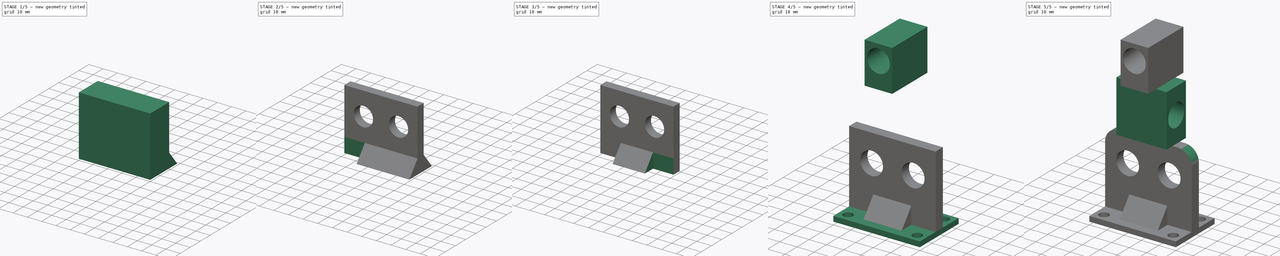
[diagram: build sequence overview — one tinted view per stage of 5, left to right]
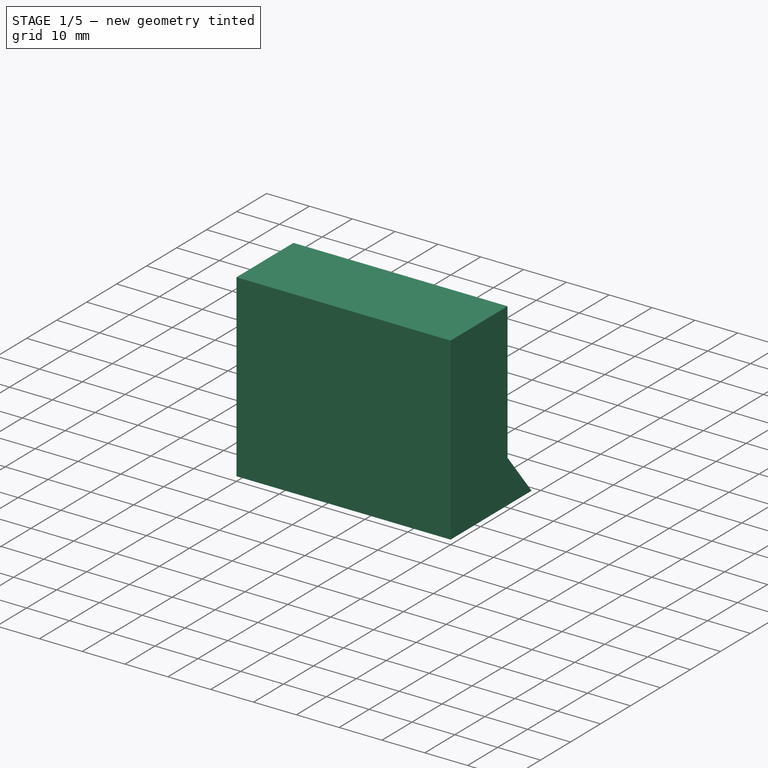
[diagram: stage 1 of 5 — iso view after this stage's code; geometry added in this stage tinted green]
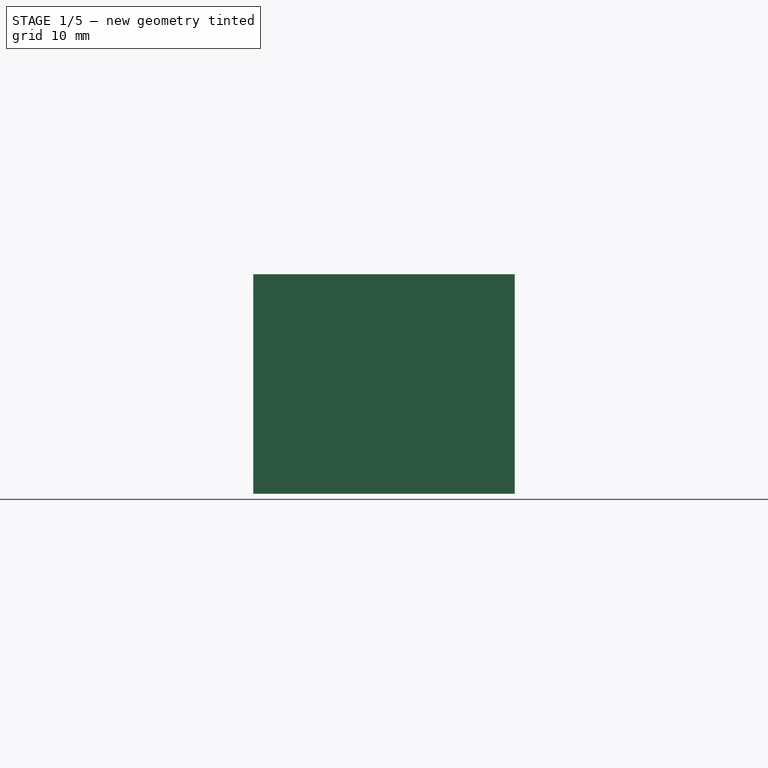
[diagram: stage 1 of 5 — front view after this stage's code; geometry added in this stage tinted green]
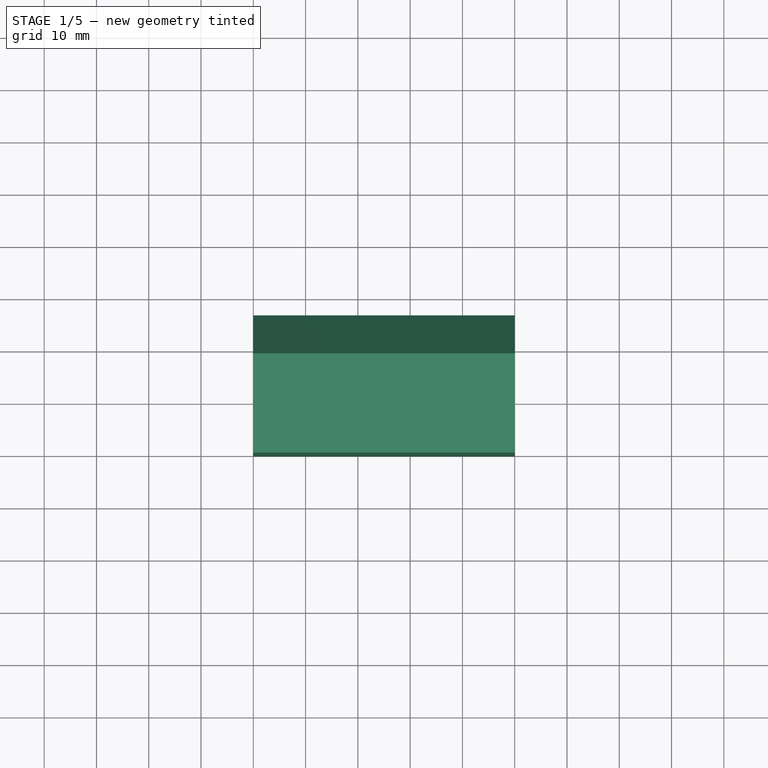
[diagram: stage 1 of 5 — top view after this stage's code; geometry added in this stage tinted green]
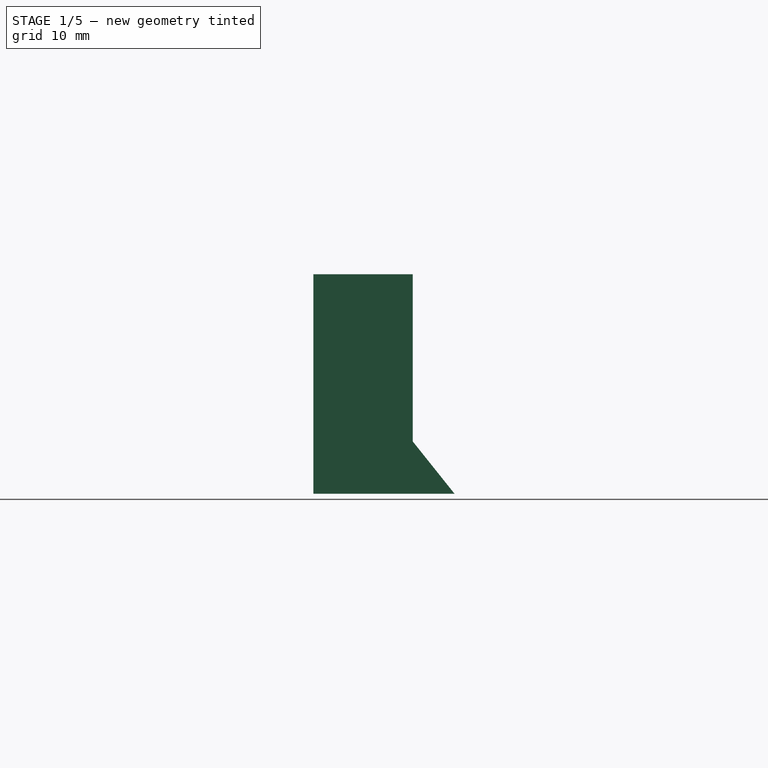
[diagram: stage 1 of 5 — right view after this stage's code; geometry added in this stage tinted green]
FCSTD DOCUMENT  (FreeCAD 0.17R13541 (Git))
Label: LimitSwitchHolder_y-axis_chainholder
License: All rights reserved
LicenseURL: http://en.wikipedia.org/wiki/All_rights_reserved
objects: Sketcher::SketchObject×14, PartDesign::Pad×10, PartDesign::Body×10, PartDesign::ShapeBinder×9, PartDesign::Boolean×8, PartDesign::Hole×4, PartDesign::Fillet×2
note: 71 computed .brp shape members not serialized (recipe doc carries the construction recipe); baked Part::Feature solids carry a one-line shape summary decoded from their .brp

FEATURE [Sketcher::SketchObject] Sketch
  MapMode = 5
  Placement = pos=(0,0,0) rot=(0.57735,0.57735,0.57735;2.0944rad)
  Support = -> [YZ_Plane]
  sketch-geometry (4):
    g0: LineSegment StartX=0 StartY=44 StartZ=0 EndX=32 EndY=44 EndZ=0
    g1: LineSegment StartX=32 StartY=44 StartZ=0 EndX=32 EndY=2 EndZ=0
    g2: LineSegment StartX=32 StartY=2 StartZ=0 EndX=0 EndY=2 EndZ=0
    g3: LineSegment StartX=0 StartY=2 StartZ=0 EndX=0 EndY=44 EndZ=0
  constraints (12):
    c: Coincident(g0,g1)
    c: Coincident(g1,g2)
    c: Coincident(g2,g3)
    c: Coincident(g3,g0)
    c: Horizontal(g0)
    c: Horizontal(g2)
    c: Vertical(g1)
    c: Vertical(g3)
    c: PointOnObject(g0,g-2)
    c: DistanceY(g-1,g2) = 2
    c: DistanceX(g2,g2) = 32
    c: DistanceY(g1,g1) = 42
FEATURE [PartDesign::Pad] Pad
  Length = 50
  Length2 = 100
  Placement = pos=(0,0,0) rot=(0.57735,0.57735,0.57735;2.0944rad)
  Profile = -> Sketch
  Type = 0
FEATURE [PartDesign::ShapeBinder] CopyPad
  Placement = pos=(50,0,0) rot=(0,0,1;0rad)
FEATURE [Sketcher::SketchObject] Sketch001
  MapMode = 5
  Placement = pos=(50,0,0) rot=(0.57735,0.57735,0.57735;2.0944rad)
  Support = -> [CopyPad]
  sketch-geometry (5):
    g0: LineSegment StartX=19 StartY=44 StartZ=0 EndX=32 EndY=44 EndZ=0
    g1: LineSegment StartX=32 StartY=44 StartZ=0 EndX=32 EndY=2 EndZ=0
    g2: LineSegment StartX=32 StartY=2 StartZ=0 EndX=27 EndY=2 EndZ=0
    g3: LineSegment StartX=27 StartY=2 StartZ=0 EndX=19 EndY=12.0119 EndZ=0
    g4: LineSegment StartX=19 StartY=12.0119 StartZ=0 EndX=19 EndY=44 EndZ=0
  constraints (14):
    c: Horizontal(g0)
    c: Coincident(g0,g1)
    c: Vertical(g1)
    c: Coincident(g1,g2)
    c: Horizontal(g2)
    c: Coincident(g2,g3)
    c: Coincident(g3,g4)
    c: Coincident(g4,g0)
    c: Vertical(g4)
    c: DistanceX(g-1,g1) = 32
    c: DistanceY(g1,g1) = 42
    c: DistanceX(g0,g0) = 13
    c: DistanceX(g2,g2) = 5
    c: DistanceY(g-1,g1) = 2
FEATURE [PartDesign::Pad] Pad001
  Length = 50
  Length2 = 100
  Placement = pos=(50,0,0) rot=(0,0,1;0rad)
  Profile = -> Sketch001
  Reversed = true
  Type = 0
FEATURE [PartDesign::Body] Body001
  Group = -> [CopyPad,Sketch001,Pad001]
  Origin = -> Origin001
  Tip = -> Pad001
FEATURE [PartDesign::ShapeBinder] CopyPad001
FEATURE [Sketcher::SketchObject] Sketch002
  MapMode = 5
  Placement = pos=(50,0,0) rot=(0.57735,0.57735,0.57735;2.0944rad)
  Support = -> [CopyPad001]
  sketch-geometry (5):
    g0: LineSegment StartX=13 StartY=44 StartZ=0 EndX=13 EndY=12 EndZ=0
    g1: LineSegment StartX=13 StartY=12 StartZ=0 EndX=5 EndY=2 EndZ=0
    g2: LineSegment StartX=5 StartY=2 StartZ=0 EndX=0 EndY=2 EndZ=0
    g3: LineSegment StartX=0 StartY=2 StartZ=0 EndX=0 EndY=44 EndZ=0
    g4: LineSegment StartX=0 StartY=44 StartZ=0 EndX=13 EndY=44 EndZ=0
  constraints (15):
    c: Vertical(g0)
    c: Coincident(g0,g1)
    c: Coincident(g1,g2)
    c: PointOnObject(g2,g-2)
    c: Horizontal(g2)
    c: Coincident(g2,g3)
    c: Vertical(g3)
    c: Coincident(g3,g4)
    c: Coincident(g4,g0)
    c: Horizontal(g4)
    c: DistanceX(g2,g2) = 5
    c: DistanceX(g4,g4) = 13
    c: DistanceY(g0,g0) = 32
    c: DistanceY(g3,g3) = 42
    c: DistanceY(g-1,g2) = 2
FEATURE [PartDesign::Pad] Pad002
  Length = 50
  Length2 = 100
  Profile = -> Sketch002
  Reversed = true
  Type = 0
FEATURE [PartDesign::Body] Body009
  Group = -> [CopyHole001001,Sketch011,Pad009,Sketch012,Hole002]
  Origin = -> Origin009
  Tip = -> Hole002
FEATURE [Sketcher::SketchObject] Sketch014
  MapMode = 5
  Placement = pos=(0,32,0) rot=(0.57735,0.57735,0.57735;4.18879rad)
  Support = -> [Pad]
  sketch-geometry (2):
    g0: Circle CenterX=28.0827 CenterY=37 CenterZ=0 NormalX=0 NormalY=0 NormalZ=1 AngleXU=0 Radius=5.90295
    g1: Circle CenterX=28 CenterY=13 CenterZ=0 NormalX=0 NormalY=0 NormalZ=1 AngleXU=0 Radius=5.783
  constraints (3):
    c: DistanceY(g1,g0) = 24
    c: DistanceY(g-1,g1) = 13
    c: DistanceX(g-1,g1) = 28
FEATURE [PartDesign::Hole] Hole004
  BaseFeature = -> Pad
  Depth = 25
  DepthType = 1
  Diameter = 13.2
  DrillPoint = 1
  DrillPointAngle = 118
  HoleCutCountersinkAngle = 90
  HoleCutDepth = 0
  HoleCutDiameter = 12
  HoleCutType = 0
  ModelActualThread = false
  Placement = pos=(0,0,0) rot=(0.57735,0.57735,0.57735;2.0944rad)
  Profile = -> Sketch014
  Tapered = false
  TaperedAngle = 90
  ThreadAngle = 0
  ThreadClass = 0
  ThreadCutOffInner = 0
  ThreadCutOffOuter = 0
  ThreadDirection = 0
  ThreadFit = 0
  ThreadPitch = 0
  ThreadSize = 10
  ThreadType = 1
  Threaded = false
FEATURE [PartDesign::Boolean] Boolean
  BaseFeature = -> Hole004
  Group = -> [Body001]
  Type = 1
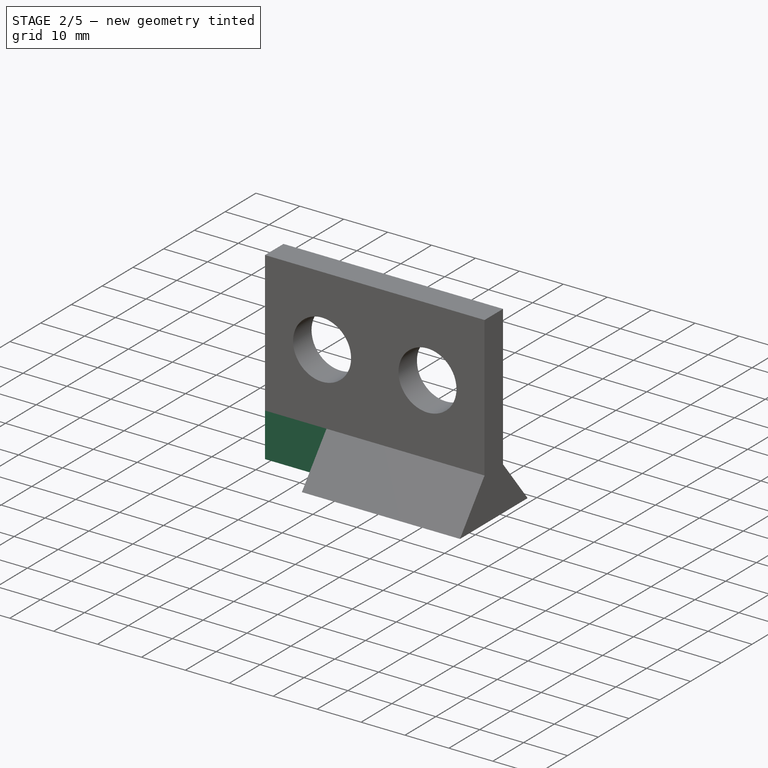
[diagram: stage 2 of 5 — iso view after this stage's code; geometry added in this stage tinted green]
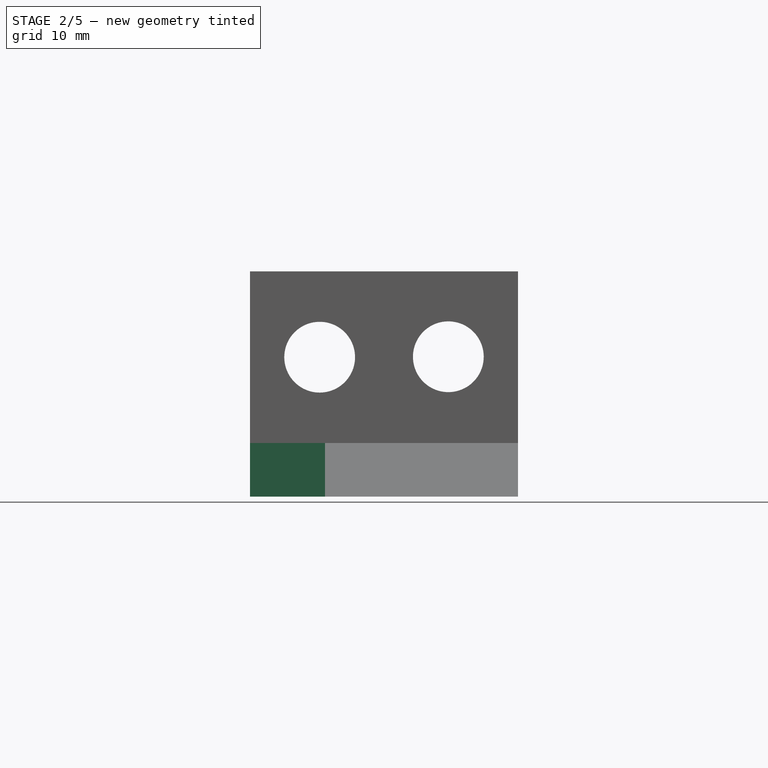
[diagram: stage 2 of 5 — front view after this stage's code; geometry added in this stage tinted green]
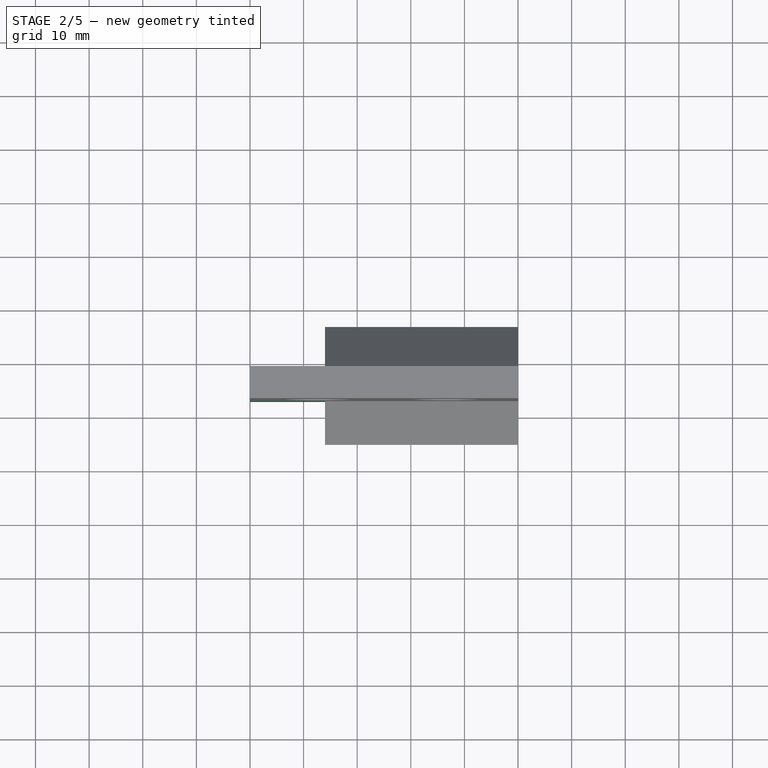
[diagram: stage 2 of 5 — top view after this stage's code; geometry added in this stage tinted green]
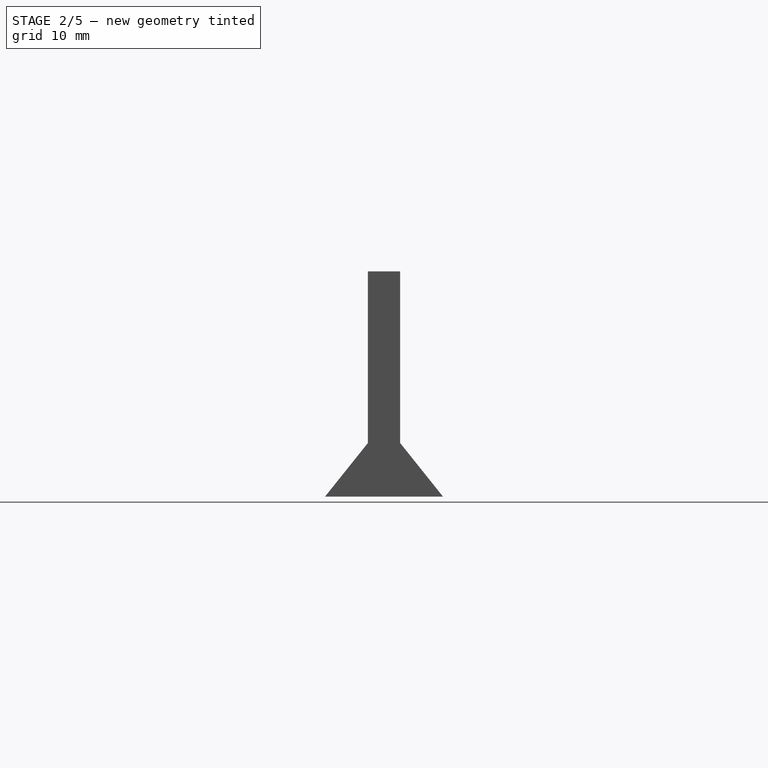
[diagram: stage 2 of 5 — right view after this stage's code; geometry added in this stage tinted green]
FEATURE [PartDesign::Body] Body003
  Group = -> [CopyPad002,Sketch003,Pad003,Sketch004,Hole]
  Origin = -> Origin003
  Tip = -> Hole
FEATURE [PartDesign::ShapeBinder] CopyHole
FEATURE [Sketcher::SketchObject] Sketch005
  MapMode = 5
  Placement = pos=(0,0,2) rot=(0,0,1;0rad)
  Support = -> [CopyHole]
  sketch-geometry (4):
    g0: LineSegment StartX=0 StartY=13 StartZ=0 EndX=14 EndY=13 EndZ=0
    g1: LineSegment StartX=14 StartY=13 StartZ=0 EndX=14 EndY=0 EndZ=0
    g2: LineSegment StartX=14 StartY=0 StartZ=0 EndX=0 EndY=0 EndZ=0
    g3: LineSegment StartX=0 StartY=0 StartZ=0 EndX=0 EndY=13 EndZ=0
  constraints (12):
    c: Coincident(g0,g1)
    c: Coincident(g1,g2)
    c: Coincident(g2,g3)
    c: Coincident(g3,g0)
    c: Horizontal(g0)
    c: Horizontal(g2)
    c: Vertical(g1)
    c: Vertical(g3)
    c: PointOnObject(g0,g-2)
    c: PointOnObject(g1,g-1)
    c: DistanceX(g2,g2) = 14
    c: DistanceY(g3,g3) = 13
FEATURE [PartDesign::Pad] Pad004
  Length = 20
  Length2 = 100
  Profile = -> Sketch005
  Type = 0
FEATURE [PartDesign::Body] Body004
  Group = -> [CopyHole,Sketch005,Pad004]
  Origin = -> Origin004
  Tip = -> Pad004
FEATURE [PartDesign::ShapeBinder] CopyHole001
FEATURE [Sketcher::SketchObject] Sketch006
  MapMode = 5
  Placement = pos=(0,0,2) rot=(0,0,1;0rad)
  Support = -> [CopyHole001]
  sketch-geometry (4):
    g0: LineSegment StartX=0 StartY=32 StartZ=0 EndX=14 EndY=32 EndZ=0
    g1: LineSegment StartX=14 StartY=32 StartZ=0 EndX=14 EndY=19 EndZ=0
    g2: LineSegment StartX=14 StartY=19 StartZ=0 EndX=0 EndY=19 EndZ=0
    g3: LineSegment StartX=0 StartY=19 StartZ=0 EndX=0 EndY=32 EndZ=0
  constraints (12):
    c: Coincident(g0,g1)
    c: Coincident(g1,g2)
    c: Coincident(g2,g3)
    c: Coincident(g3,g0)
    c: Horizontal(g0)
    c: Horizontal(g2)
    c: Vertical(g1)
    c: Vertical(g3)
    c: PointOnObject(g0,g-2)
    c: DistanceY(g3,g3) = 13
    c: DistanceX(g2,g2) = 14
    c: DistanceY(g-1,g2) = 19
FEATURE [PartDesign::Pad] Pad005
  Length = 20
  Length2 = 100
  Profile = -> Sketch006
  Type = 0
FEATURE [PartDesign::Boolean] Boolean001
  BaseFeature = -> Boolean
  Group = -> [Body002]
  Type = 1
FEATURE [PartDesign::Boolean] Boolean002
  BaseFeature = -> Boolean001
  Group = -> [Body004]
  Type = 1
FEATURE [PartDesign::Boolean] Boolean003
  BaseFeature = -> Boolean002
  Group = -> [Body005]
  Type = 1
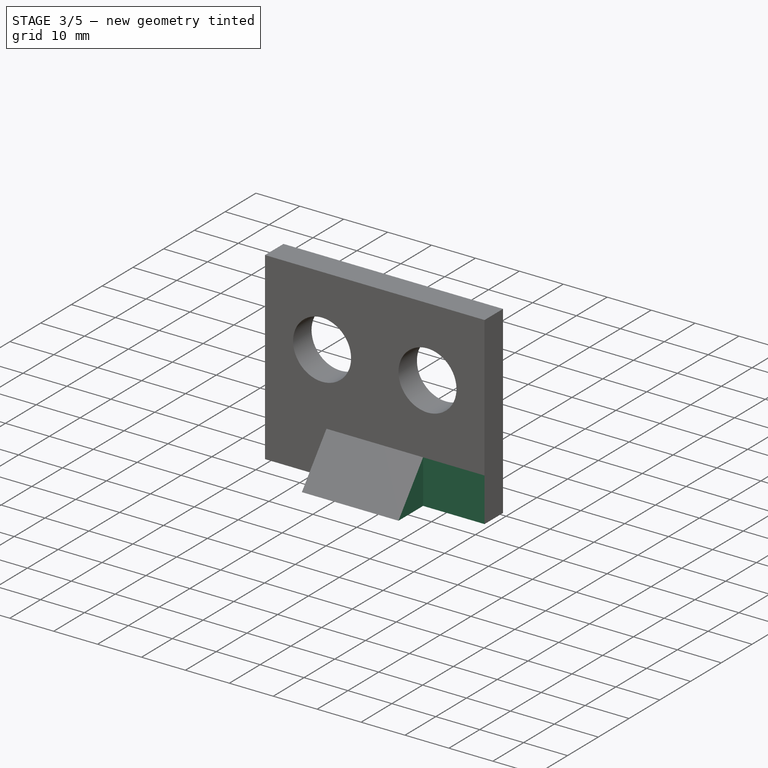
[diagram: stage 3 of 5 — iso view after this stage's code; geometry added in this stage tinted green]
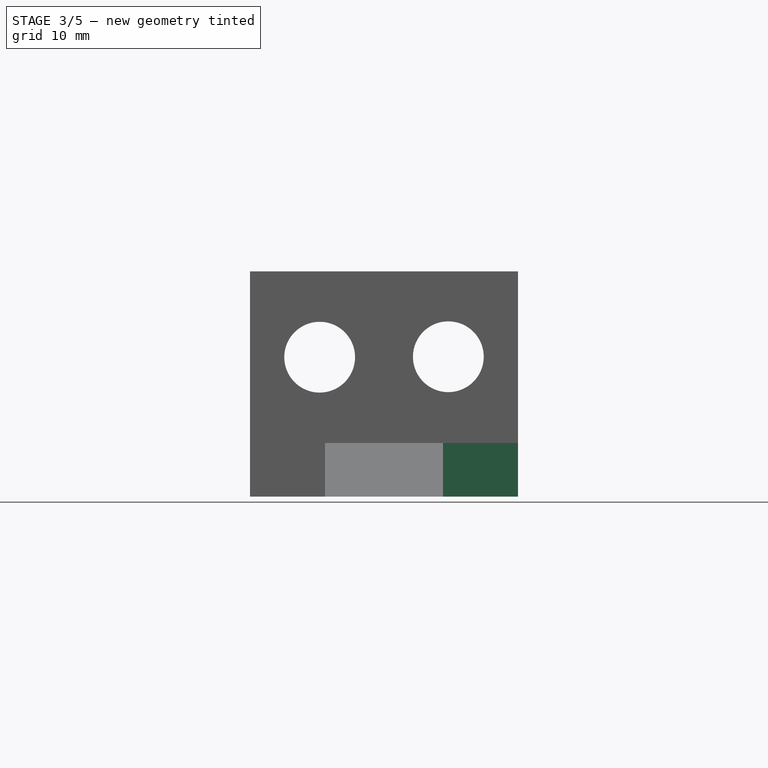
[diagram: stage 3 of 5 — front view after this stage's code; geometry added in this stage tinted green]
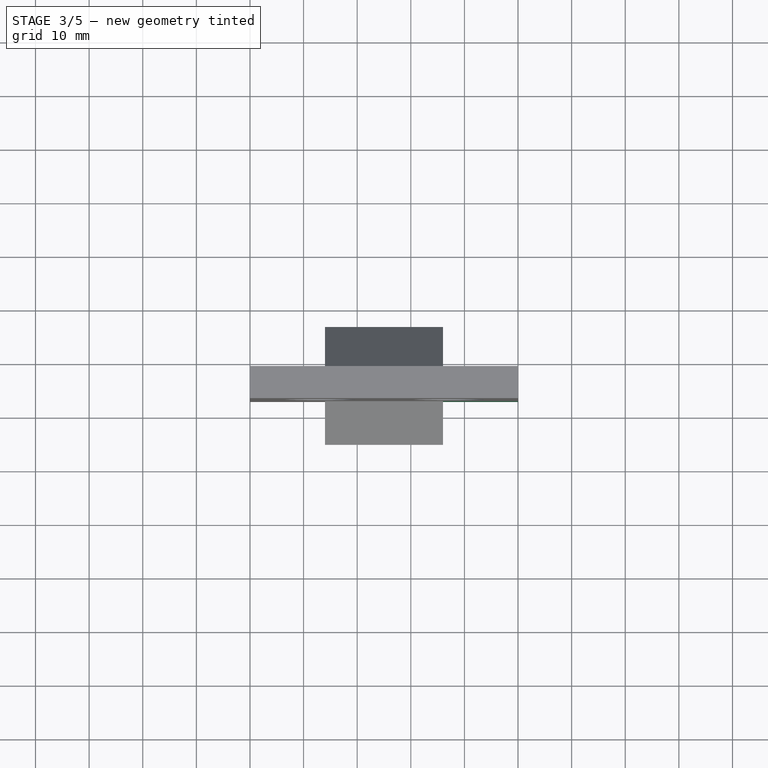
[diagram: stage 3 of 5 — top view after this stage's code; geometry added in this stage tinted green]
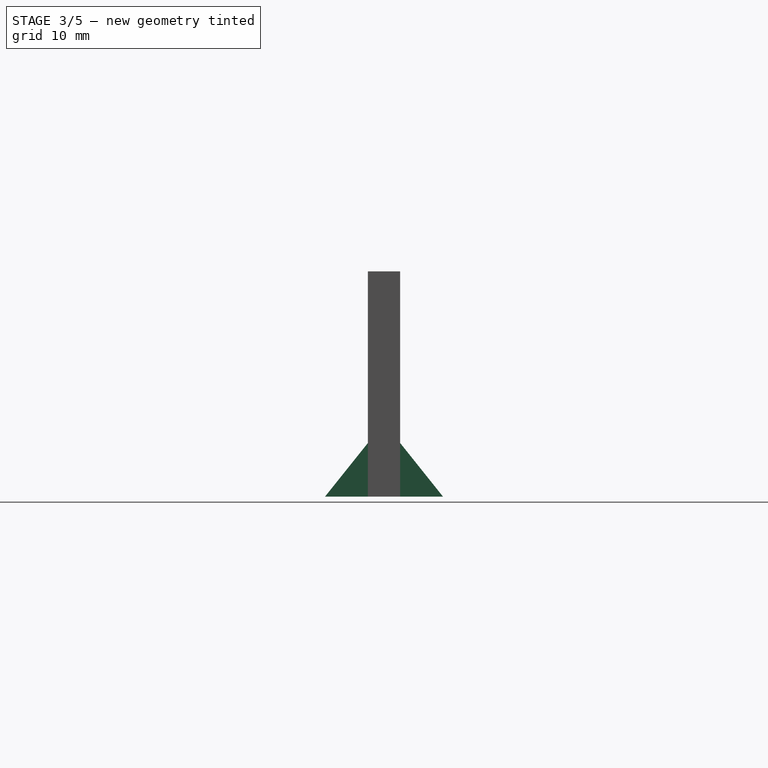
[diagram: stage 3 of 5 — right view after this stage's code; geometry added in this stage tinted green]
FEATURE [PartDesign::Body] Body005
  Group = -> [CopyHole001,Sketch006,Pad005]
  Origin = -> Origin005
  Tip = -> Pad005
FEATURE [PartDesign::ShapeBinder] CopyHole002
FEATURE [Sketcher::SketchObject] Sketch007
  MapMode = 5
  Placement = pos=(0,0,2) rot=(0,0,1;0rad)
  Support = -> [CopyHole002]
  sketch-geometry (4):
    g0: LineSegment StartX=50 StartY=0 StartZ=0 EndX=36 EndY=0 EndZ=0
    g1: LineSegment StartX=36 StartY=0 StartZ=0 EndX=36 EndY=13 EndZ=0
    g2: LineSegment StartX=36 StartY=13 StartZ=0 EndX=50 EndY=13 EndZ=0
    g3: LineSegment StartX=50 StartY=13 StartZ=0 EndX=50 EndY=0 EndZ=0
  constraints (12):
    c: Coincident(g0,g1)
    c: Coincident(g1,g2)
    c: Coincident(g2,g3)
    c: Coincident(g3,g0)
    c: Horizontal(g0)
    c: Horizontal(g2)
    c: Vertical(g1)
    c: Vertical(g3)
    c: PointOnObject(g0,g-1)
    c: DistanceX(g0,g0) = 14
    c: DistanceY(g1,g1) = 13
    c: DistanceX(g-1,g0) = 36
FEATURE [PartDesign::Pad] Pad006
  Length = 20
  Length2 = 100
  Profile = -> Sketch007
  Type = 0
FEATURE [PartDesign::Body] Body006
  Group = -> [CopyHole002,Sketch007,Pad006]
  Origin = -> Origin006
  Tip = -> Pad006
FEATURE [PartDesign::ShapeBinder] CopyHole003
FEATURE [Sketcher::SketchObject] Sketch008
  MapMode = 5
  Placement = pos=(0,0,2) rot=(0,0,1;0rad)
  Support = -> [CopyHole003]
  sketch-geometry (4):
    g0: LineSegment StartX=50 StartY=32 StartZ=0 EndX=36 EndY=32 EndZ=0
    g1: LineSegment StartX=36 StartY=32 StartZ=0 EndX=36 EndY=19 EndZ=0
    g2: LineSegment StartX=36 StartY=19 StartZ=0 EndX=50 EndY=19 EndZ=0
    g3: LineSegment StartX=50 StartY=19 StartZ=0 EndX=50 EndY=32 EndZ=0
  constraints (12):
    c: Coincident(g0,g1)
    c: Coincident(g1,g2)
    c: Coincident(g2,g3)
    c: Coincident(g3,g0)
    c: Horizontal(g0)
    c: Horizontal(g2)
    c: Vertical(g1)
    c: Vertical(g3)
    c: DistanceY(g-1,g2) = 19
    c: DistanceY(g3,g3) = 13
    c: DistanceX(g2,g2) = 14
    c: DistanceX(g-1,g1) = 36
FEATURE [PartDesign::Pad] Pad007
  Length = 20
  Length2 = 100
  Profile = -> Sketch008
  Type = 0
FEATURE [PartDesign::Boolean] Boolean004
  BaseFeature = -> Boolean003
  Group = -> [Body006]
  Type = 1
FEATURE [PartDesign::Boolean] Boolean005
  BaseFeature = -> Boolean004
  Group = -> [Body007]
  Type = 1
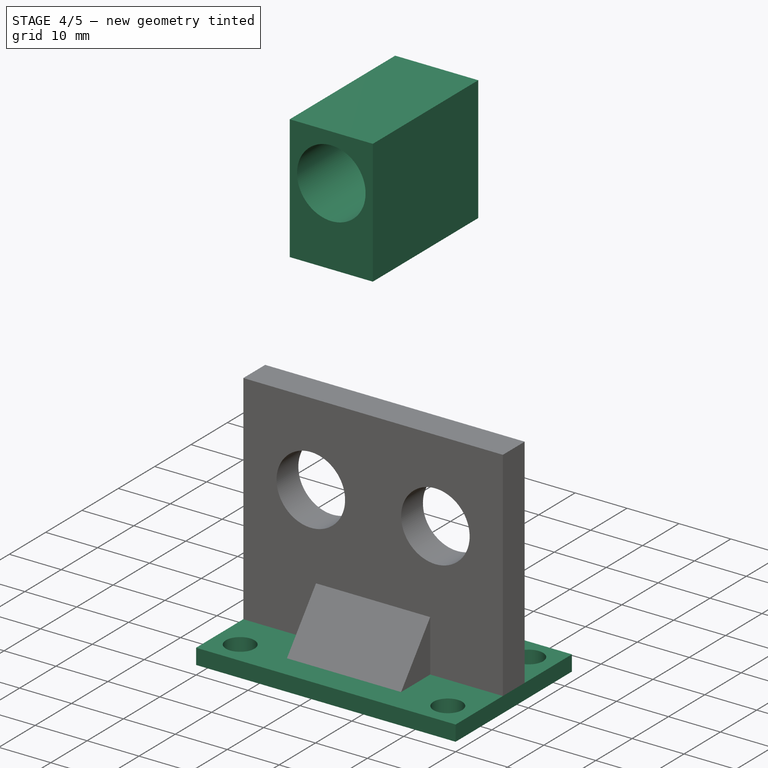
[diagram: stage 4 of 5 — iso view after this stage's code; geometry added in this stage tinted green]
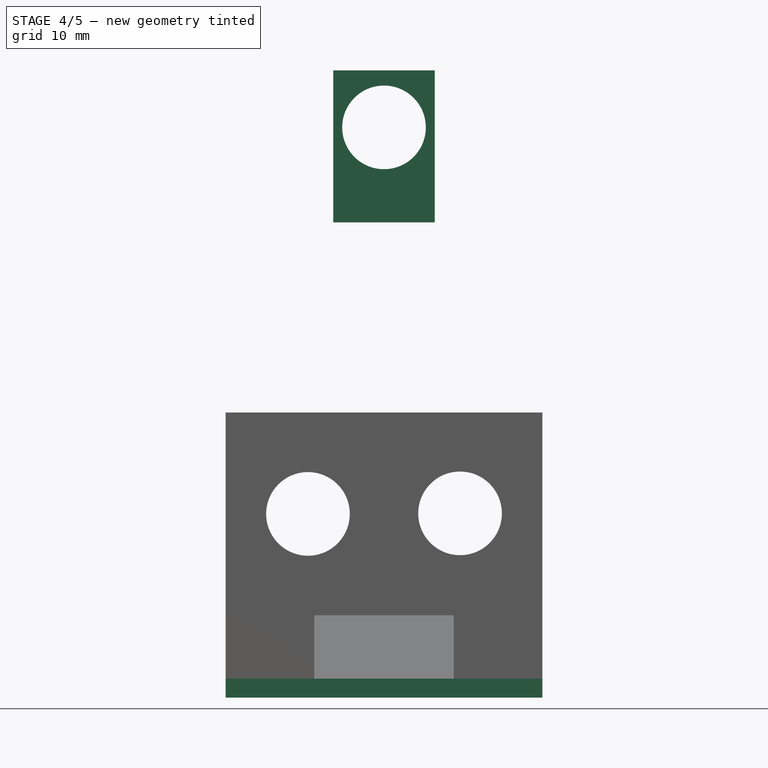
[diagram: stage 4 of 5 — front view after this stage's code; geometry added in this stage tinted green]
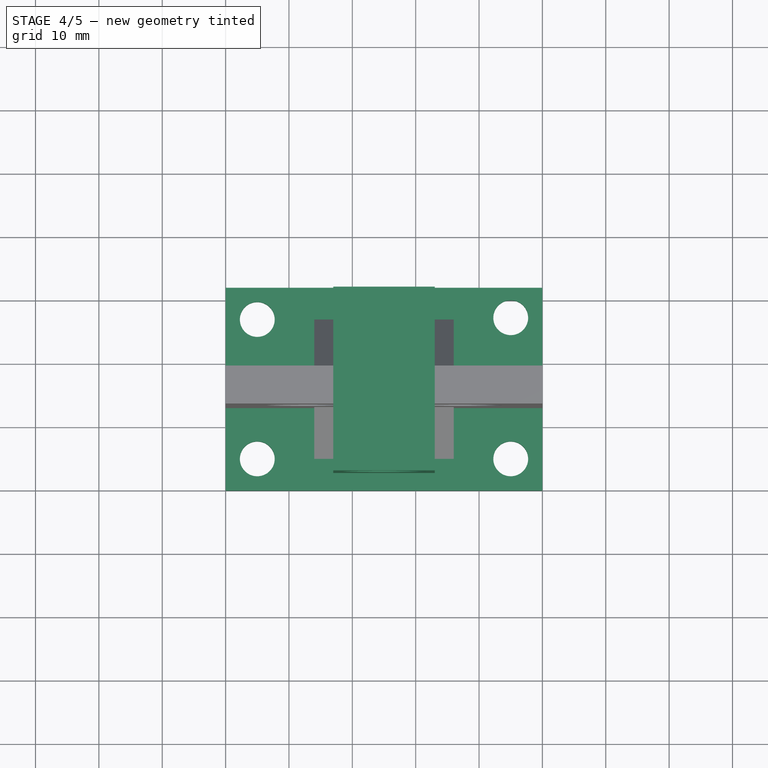
[diagram: stage 4 of 5 — top view after this stage's code; geometry added in this stage tinted green]
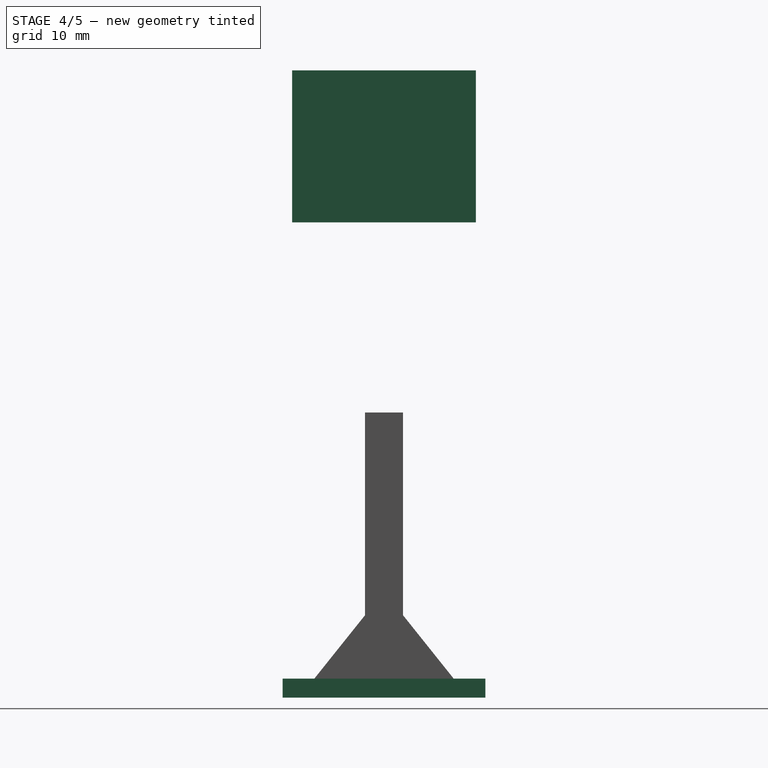
[diagram: stage 4 of 5 — right view after this stage's code; geometry added in this stage tinted green]
FEATURE [PartDesign::Body] Body002
  Group = -> [CopyPad001,Sketch002,Pad002]
  Origin = -> Origin002
  Tip = -> Pad002
FEATURE [PartDesign::ShapeBinder] CopyPad002
FEATURE [Sketcher::SketchObject] Sketch003
  MapMode = 5
  Placement = pos=(0,0,0) rot=(-0.57735,0.57735,0.57735;4.18879rad)
  Support = -> [CopyPad002]
  sketch-geometry (4):
    g0: LineSegment StartX=-32 StartY=2 StartZ=0 EndX=0 EndY=2 EndZ=0
    g1: LineSegment StartX=0 StartY=2 StartZ=0 EndX=0 EndY=-1 EndZ=0
    g2: LineSegment StartX=0 StartY=-1 StartZ=0 EndX=-32 EndY=-1 EndZ=0
    g3: LineSegment StartX=-32 StartY=-1 StartZ=0 EndX=-32 EndY=2 EndZ=0
  constraints (12):
    c: Coincident(g0,g1)
    c: Coincident(g1,g2)
    c: Coincident(g2,g3)
    c: Coincident(g3,g0)
    c: Horizontal(g0)
    c: Horizontal(g2)
    c: Vertical(g1)
    c: Vertical(g3)
    c: DistanceY(g1,g-1) = 1
    c: DistanceY(g1,g1) = 3
    c: DistanceX(g0,g0) = 32
    c: DistanceX(g-1,g1) = 0
FEATURE [PartDesign::Pad] Pad003
  Length = 50
  Length2 = 100
  Profile = -> Sketch003
  Reversed = true
  Type = 0
FEATURE [Sketcher::SketchObject] Sketch004
  MapMode = 5
  Placement = pos=(0,0,2) rot=(0,0,1;0rad)
  Support = -> [Pad003]
  sketch-geometry (4):
    g0: Circle CenterX=5 CenterY=27 CenterZ=0 NormalX=0 NormalY=0 NormalZ=1 AngleXU=0 Radius=2.77664
    g1: Circle CenterX=5 CenterY=5 CenterZ=0 NormalX=0 NormalY=0 NormalZ=1 AngleXU=0 Radius=2.74309
    g2: Circle CenterX=45 CenterY=5 CenterZ=0 NormalX=0 NormalY=0 NormalZ=1 AngleXU=0 Radius=2.61618
    g3: Circle CenterX=45 CenterY=27.2764 CenterZ=0 NormalX=0 NormalY=0 NormalZ=1 AngleXU=0 Radius=2.42914
  constraints (7):
    c: DistanceY(g-1,g1) = 5
    c: DistanceY(g1,g0) = 22
    c: DistanceX(g0,g3) = 40
    c: DistanceX(g-1,g1) = 5
    c: Horizontal(g1,g2)
    c: Vertical(g2,g3)
    c: Vertical(g0,g1)
FEATURE [PartDesign::Hole] Hole
  BaseFeature = -> Pad003
  Depth = 25
  DepthType = 1
  Diameter = 5.5
  DrillPoint = 1
  DrillPointAngle = 118
  HoleCutCountersinkAngle = 90
  HoleCutDepth = 0
  HoleCutDiameter = 5
  HoleCutType = 0
  ModelActualThread = false
  Profile = -> Sketch004
  Tapered = false
  TaperedAngle = 90
  ThreadAngle = 0
  ThreadClass = 0
  ThreadCutOffInner = 0
  ThreadCutOffOuter = 0
  ThreadDirection = 0
  ThreadFit = 0
  ThreadPitch = 0
  ThreadSize = 6
  ThreadType = 1
  Threaded = false
FEATURE [PartDesign::Body] Body008
  Group = -> [CopyPad003,Sketch009,Pad008,Sketch010,Hole001]
  Origin = -> Origin008
  Tip = -> Hole001
FEATURE [PartDesign::ShapeBinder] CopyHole001001
  Placement = pos=(0,0,30) rot=(-0.57735,-0.57735,-0.57735;0rad)
FEATURE [Sketcher::SketchObject] Sketch011
  MapMode = 5
  Placement = pos=(0,0,74) rot=(0,0,1;0rad)
  Support = -> [CopyHole001001]
  sketch-geometry (4):
    g0: LineSegment StartX=17 StartY=30.5 StartZ=0 EndX=33 EndY=30.5 EndZ=0
    g1: LineSegment StartX=33 StartY=30.5 StartZ=0 EndX=33 EndY=1.5 EndZ=0
    g2: LineSegment StartX=33 StartY=1.5 StartZ=0 EndX=17 EndY=1.5 EndZ=0
    g3: LineSegment StartX=17 StartY=1.5 StartZ=0 EndX=17 EndY=30.5 EndZ=0
  constraints (12):
    c: Coincident(g0,g1)
    c: Coincident(g1,g2)
    c: Coincident(g2,g3)
    c: Coincident(g3,g0)
    c: Horizontal(g0)
    c: Horizontal(g2)
    c: Vertical(g1)
    c: Vertical(g3)
    c: DistanceY(g-1,g2) = 1.5
    c: DistanceY(g3,g3) = 29
    c: DistanceX(g2,g2) = 16
    c: DistanceX(g-1,g2) = 17
FEATURE [PartDesign::Pad] Pad009
  Length = 24
  Length2 = 100
  Placement = pos=(0,0,30) rot=(-0.57735,-0.57735,-0.57735;0rad)
  Profile = -> Sketch011
  Type = 0
FEATURE [Sketcher::SketchObject] Sketch012
  MapMode = 5
  Placement = pos=(-5.24795e-07,30.5,30) rot=(0,0.707107,0.707107;3.14159rad)
  Support = -> [Pad009]
  sketch-geometry (1):
    g0: Circle CenterX=-25 CenterY=59 CenterZ=0 NormalX=0 NormalY=0 NormalZ=1 AngleXU=0 Radius=5.91727
  constraints (2):
    c: DistanceY(g-1,g0) = 59
    c: DistanceX(g0,g-1) = 25
FEATURE [PartDesign::Hole] Hole002
  BaseFeature = -> Pad009
  Depth = 25
  DepthType = 1
  Diameter = 13.2
  DrillPoint = 1
  DrillPointAngle = 118
  HoleCutCountersinkAngle = 90
  HoleCutDepth = 0
  HoleCutDiameter = 12
  HoleCutType = 0
  ModelActualThread = false
  Placement = pos=(0,0,30) rot=(-0.57735,-0.57735,-0.57735;0rad)
  Profile = -> Sketch012
  Tapered = false
  TaperedAngle = 90
  ThreadAngle = 0
  ThreadClass = 0
  ThreadCutOffInner = 0
  ThreadCutOffOuter = 0
  ThreadDirection = 0
  ThreadFit = 0
  ThreadPitch = 0
  ThreadSize = 10
  ThreadType = 1
  Threaded = false
FEATURE [PartDesign::Boolean] Boolean006
  BaseFeature = -> Boolean005
  Group = -> [Body003]
  Type = 0
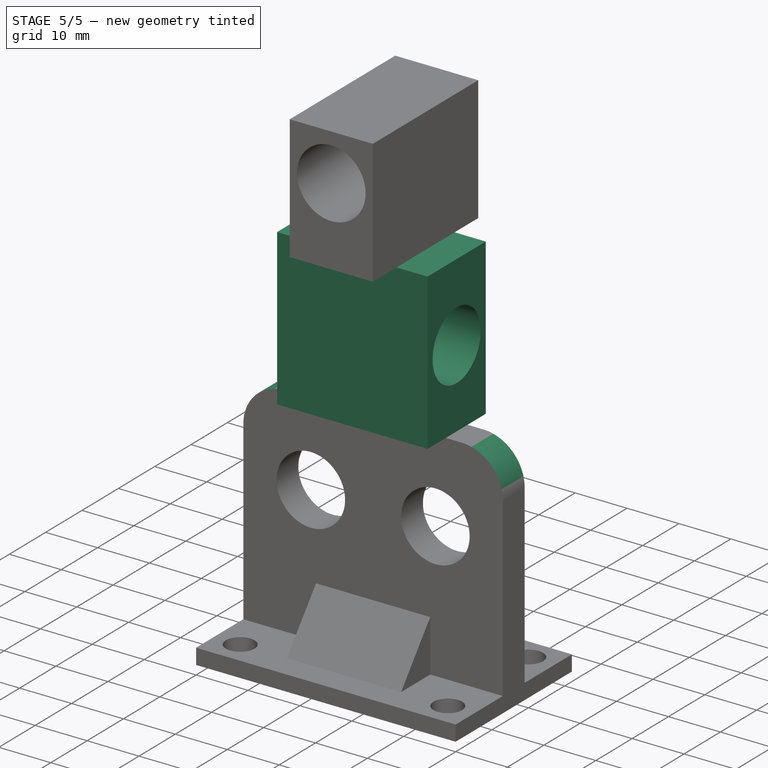
[diagram: stage 5 of 5 — iso view after this stage's code; geometry added in this stage tinted green]
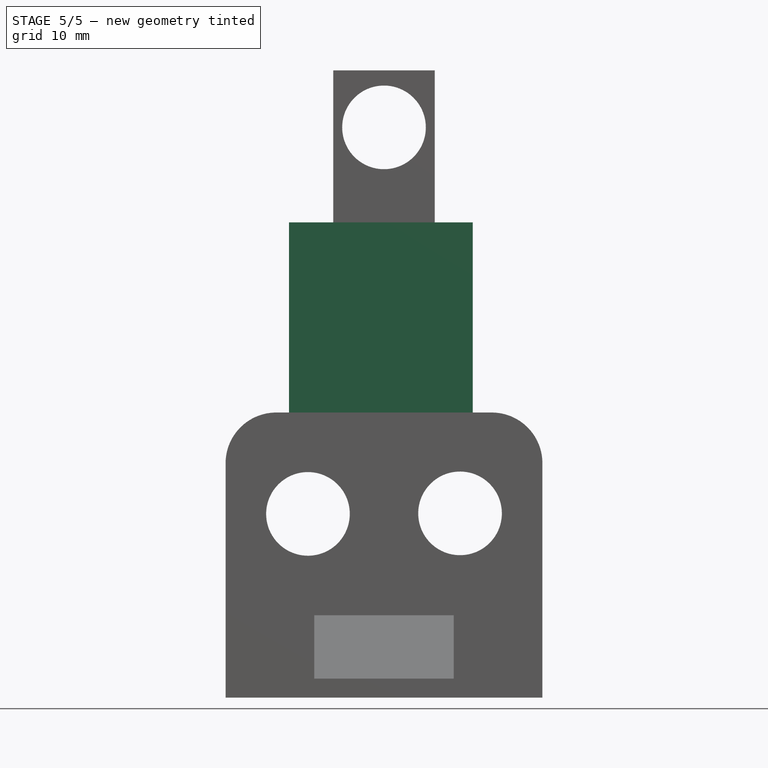
[diagram: stage 5 of 5 — front view after this stage's code; geometry added in this stage tinted green]
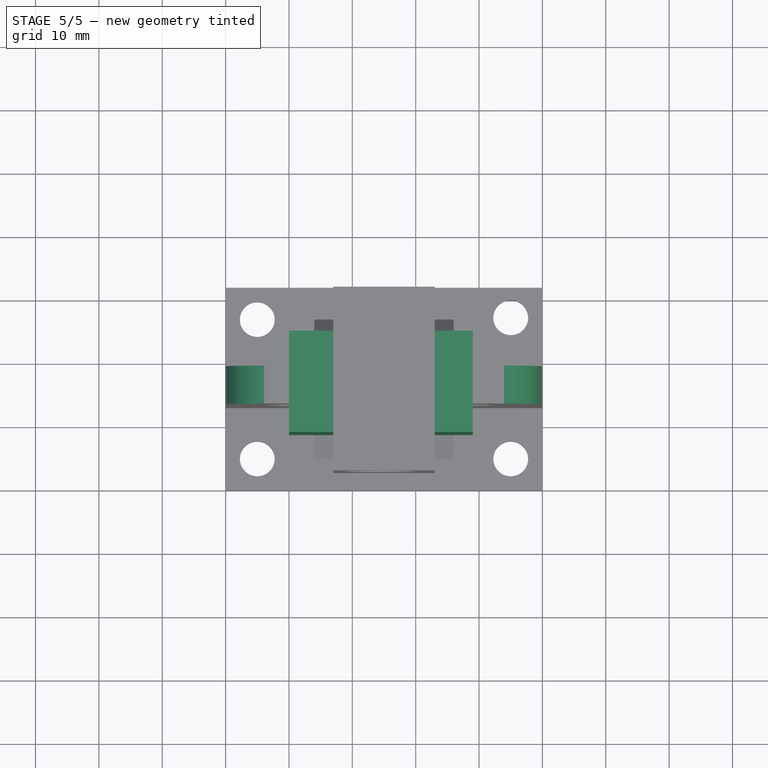
[diagram: stage 5 of 5 — top view after this stage's code; geometry added in this stage tinted green]
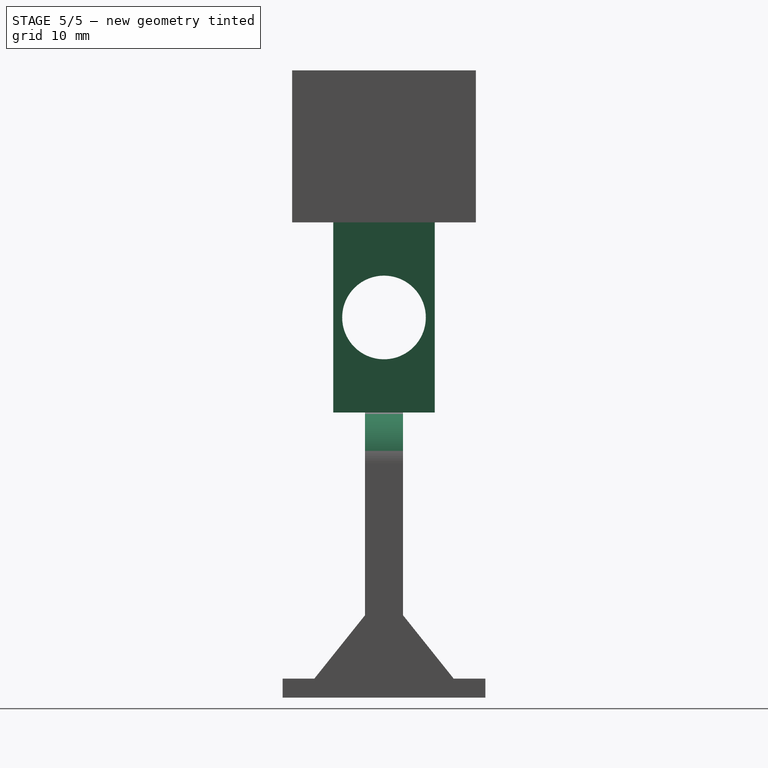
[diagram: stage 5 of 5 — right view after this stage's code; geometry added in this stage tinted green]
FEATURE [PartDesign::Body] Body007
  Group = -> [CopyHole003,Sketch008,Pad007]
  Origin = -> Origin007
  Tip = -> Pad007
FEATURE [PartDesign::ShapeBinder] CopyPad003
  Placement = pos=(0,0,0) rot=(0.57735,0.57735,0.57735;2.0944rad)
FEATURE [Sketcher::SketchObject] Sketch009
  MapMode = 5
  Placement = pos=(0,0,44) rot=(0,0,-1;1.5708rad)
  Support = -> [CopyPad003]
  sketch-geometry (4):
    g0: LineSegment StartX=-24 StartY=10 StartZ=0 EndX=-8 EndY=10 EndZ=0
    g1: LineSegment StartX=-8 StartY=10 StartZ=0 EndX=-8 EndY=39 EndZ=0
    g2: LineSegment StartX=-8 StartY=39 StartZ=0 EndX=-24 EndY=39 EndZ=0
    g3: LineSegment StartX=-24 StartY=39 StartZ=0 EndX=-24 EndY=10 EndZ=0
  constraints (12):
    c: Coincident(g0,g1)
    c: Coincident(g1,g2)
    c: Coincident(g2,g3)
    c: Coincident(g3,g0)
    c: Horizontal(g0)
    c: Horizontal(g2)
    c: Vertical(g1)
    c: Vertical(g3)
    c: DistanceY(g-1,g0) = 10
    c: DistanceX(g0,g0) = 16
    c: DistanceX(g0,g-1) = 8
    c: DistanceY(g3,g3) = 29
FEATURE [PartDesign::Pad] Pad008
  Length = 30
  Length2 = 100
  Placement = pos=(0,0,0) rot=(0.57735,0.57735,0.57735;2.0944rad)
  Profile = -> Sketch009
  Type = 0
FEATURE [Sketcher::SketchObject] Sketch010
  MapMode = 5
  Placement = pos=(10,0,0) rot=(0.57735,0.57735,-0.57735;4.18879rad)
  Support = -> [Pad008]
  sketch-geometry (1):
    g0: Circle CenterX=16 CenterY=-59 CenterZ=0 NormalX=0 NormalY=0 NormalZ=1 AngleXU=0 Radius=6.29686
  constraints (2):
    c: DistanceY(g0,g-1) = 59
    c: DistanceX(g-1,g0) = 16
FEATURE [PartDesign::Hole] Hole001
  BaseFeature = -> Pad008
  Depth = 25
  DepthType = 1
  Diameter = 13.2
  DrillPoint = 1
  DrillPointAngle = 118
  HoleCutCountersinkAngle = 90
  HoleCutDepth = 0
  HoleCutDiameter = 12
  HoleCutType = 0
  ModelActualThread = false
  Placement = pos=(0,0,0) rot=(0.57735,0.57735,0.57735;2.0944rad)
  Profile = -> Sketch010
  Tapered = false
  TaperedAngle = 90
  ThreadAngle = 0
  ThreadClass = 0
  ThreadCutOffInner = 0
  ThreadCutOffOuter = 0
  ThreadDirection = 0
  ThreadFit = 0
  ThreadPitch = 0
  ThreadSize = 10
  ThreadType = 1
  Threaded = false
FEATURE [PartDesign::Boolean] Boolean007
  BaseFeature = -> Boolean006
  Group = -> [Body008,Body009]
  Type = 0
FEATURE [PartDesign::Fillet] Fillet
  Base = -> Boolean007 [Edge66]
  BaseFeature = -> Boolean007
  Radius = 8
FEATURE [PartDesign::Fillet] Fillet001
  Base = -> Fillet [Edge36]
  BaseFeature = -> Fillet
  Radius = 8
FEATURE [PartDesign::Body] Body
  Group = -> [Sketch,Pad,Sketch014,Hole004,Boolean,Boolean001,Boolean002,Boolean003,Boolean004,Boolean005,Boolean006,Boolean007,Fillet,Fillet001]
  Origin = -> Origin
  Tip = -> Fillet001
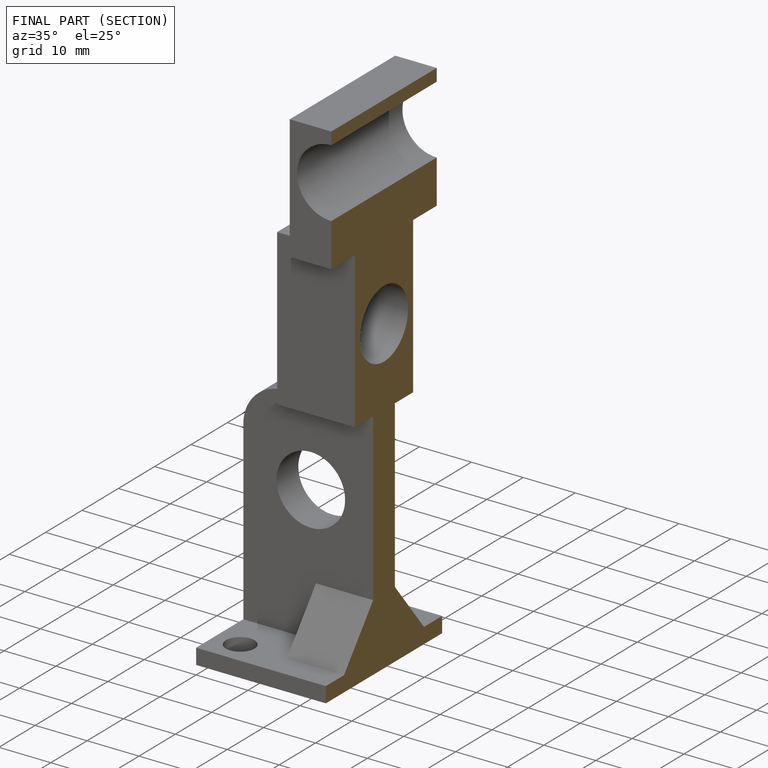
[diagram: finished part — half-section view (interior)]
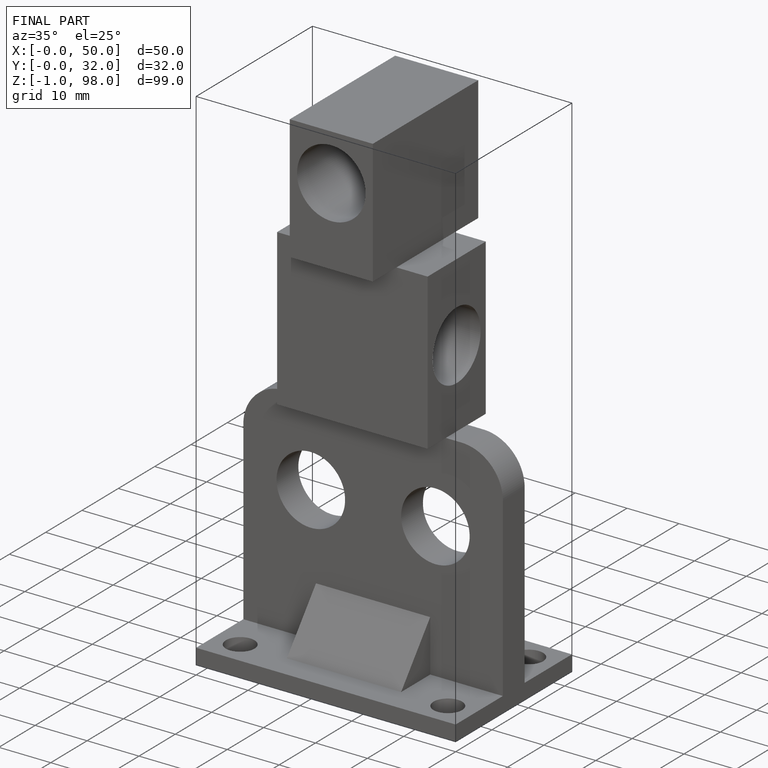
[diagram: finished part — iso view with bounding-box wireframe]
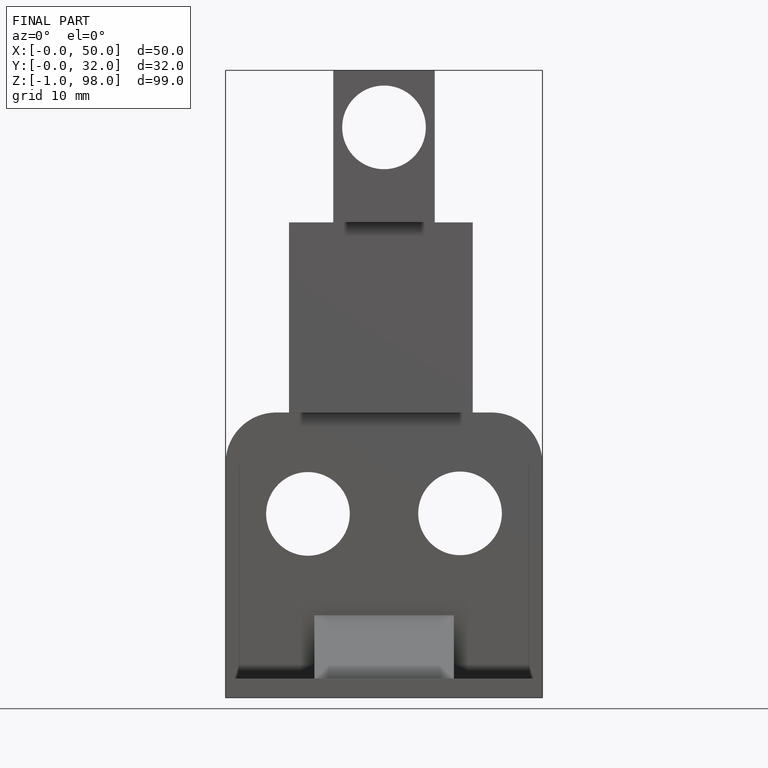
[diagram: finished part — front view with bounding-box wireframe]
